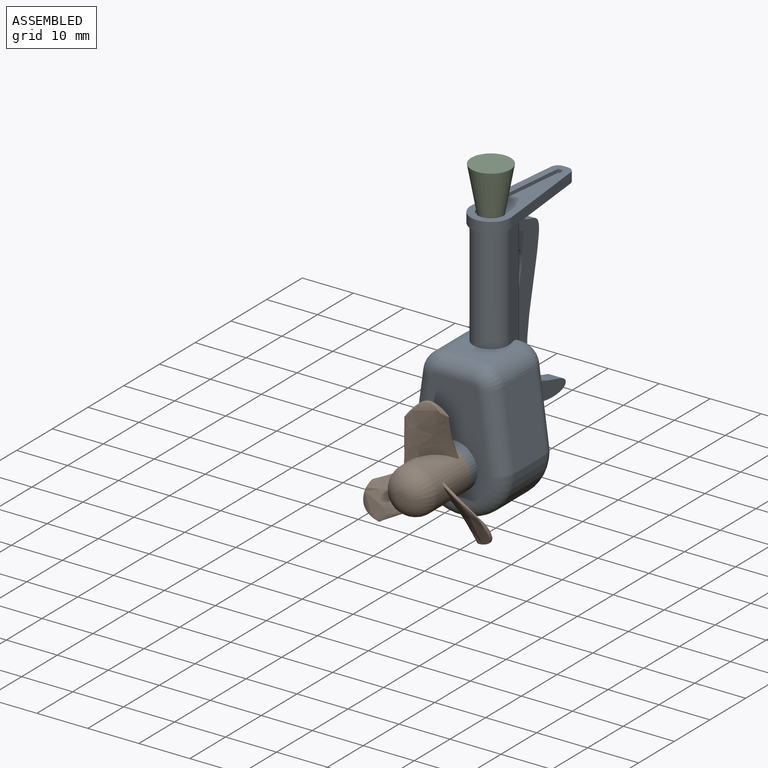
[diagram: assembled view]
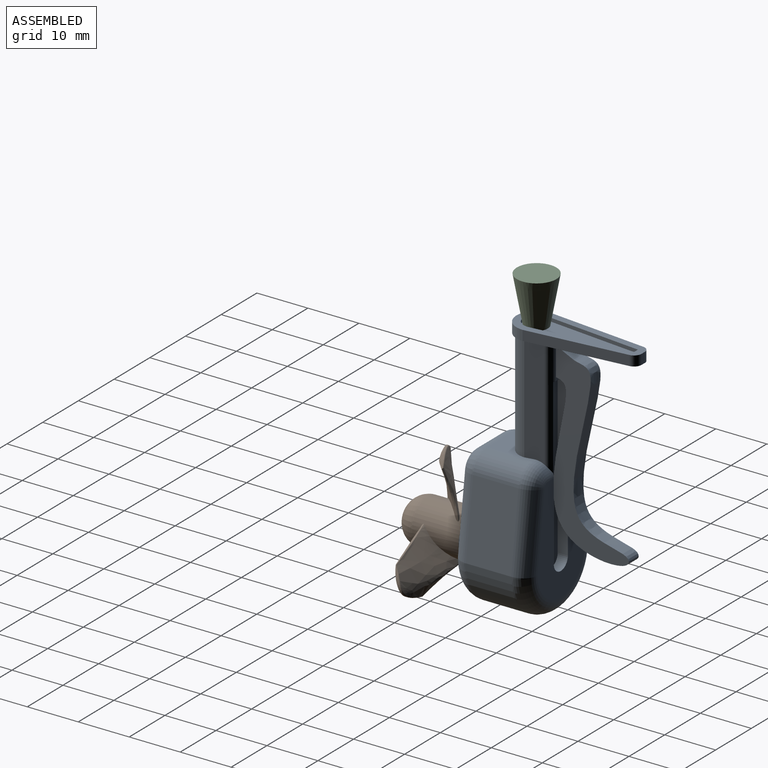
[diagram: assembled view, second angle]
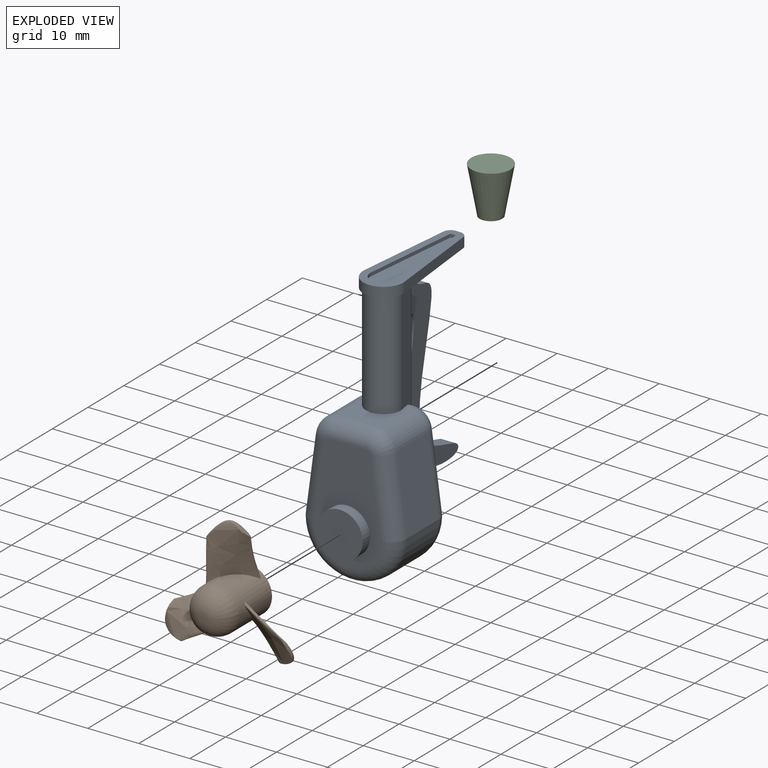
[diagram: exploded view]
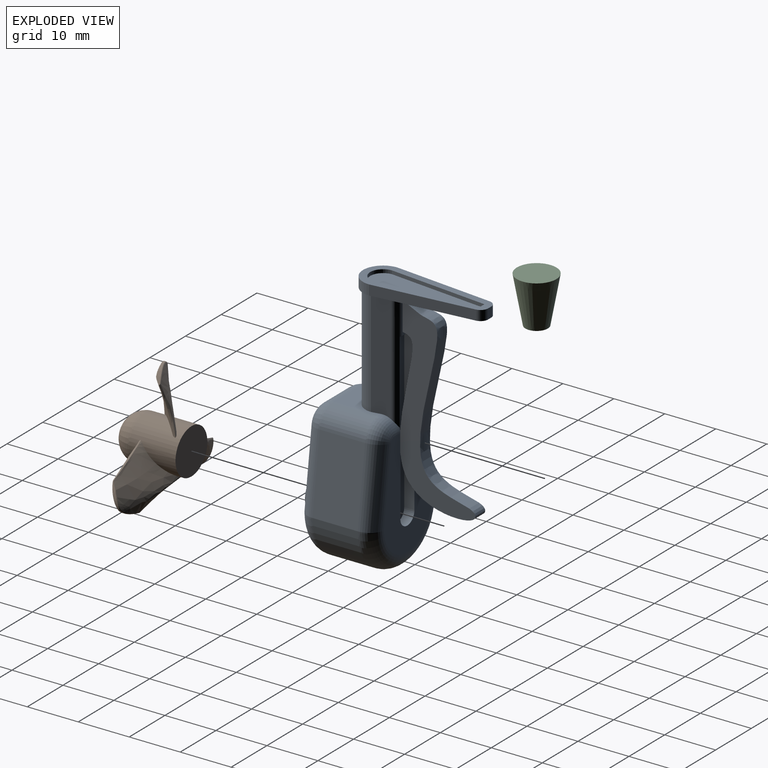
[diagram: exploded view, second angle]
ASSEMBLY  parts=3 mates=2
PART A: 52 faces, bbox 20.8x33.1x51.6 mm
  f0: cylinder r=1.5mm len=22.96mm, axis (0,0,-1), area 36.5mm2, adj f4,f12,f13,f27,f29,f34,f35,f37
  f1: plane 21.96x13.2mm, normal (0,1,0), area 171.6mm2, adj f3,f4,f22,f23,f24,f25,f26,f28
  f2: cylinder r=1.5mm len=22.96mm, axis (0,0,-1), area 36.9mm2, adj f3,f12,f15,f27,f28,f37
  f3: cylinder r=3mm len=3mm, axis (-1,0,0), area 4.9mm2, adj f1,f2,f8,f15,f22,f28
  f4: cylinder r=3mm len=3mm, axis (-1,0,0), area 4.9mm2, adj f0,f1,f8,f13,f26,f29
  f5: cylinder r=9.6mm len=19.2mm, axis (0,1,0), area 268.4mm2, adj f6,f10,f20,f24
  f6: plane 14.9x8.9mm, normal (0.99,0,0.13), area 133.8mm2, adj f5,f7,f21,f23
  f7: cylinder r=4mm len=8.9mm, axis (0,1,0), area 51.1mm2, adj f6,f8,f19,f22
  f8: plane 8.9x7.22mm, normal (0,0,1), area 34mm2, adj f3,f4,f7,f9,f13,f14,f15,f17
  f9: cylinder r=4mm len=8.9mm, axis (0,1,0), area 51.1mm2, adj f8,f10,f16,f26
  f10: plane 14.9x8.9mm, normal (-0.99,0,0.13), area 133.8mm2, adj f5,f9,f18,f25
  f11: plane 21.96x13.2mm, normal (0,-1,0), area 175.2mm2, adj f16,f17,f18,f19,f20,f21,f32
  f12: plane 6.84x2.73mm, normal (0,1,0), area 3.3mm2, adj f0,f2,f27,f34,f36,f37
  f13: plane 21.41x3.52mm, normal (-0.99,0.17,0), area 74.5mm2, adj f0,f4,f8,f14,f37
  f14: cylinder r=3.45mm len=20.83mm, axis (0,0,-1), area 225.8mm2, adj f8,f13,f15,f37
  f15: plane 21.41x3.52mm, normal (0.99,0.17,0), area 74.5mm2, adj f2,f3,f8,f14,f37
  f16: torus R=1mm, axis (0,-1,0), area 19.7mm2, adj f9,f11,f17,f18
  f17: cylinder r=3mm len=7.22mm, axis (1,0,0), area 34mm2, adj f8,f11,f16,f19
  f18: cylinder r=3mm len=15.3mm, axis (0.13,0,0.99), area 70.3mm2, adj f10,f11,f16,f20
  f19: torus R=1mm, axis (0,-1,0), area 19.7mm2, adj f7,f11,f17,f21
  f20: torus R=6.6mm, axis (0,-1,0), area 124.9mm2, adj f5,f11,f18,f21
  f21: cylinder r=3mm len=15.3mm, axis (0.13,0,-0.99), area 70.3mm2, adj f6,f11,f19,f20
  f22: torus R=1mm, axis (0,-1,0), area 19.7mm2, adj f1,f3,f7,f23
  f23: cylinder r=3mm len=15.3mm, axis (-0.13,0,0.99), area 70.3mm2, adj f1,f6,f22,f24
  f24: torus R=6.6mm, axis (0,-1,0), area 124.9mm2, adj f1,f5,f23,f25
  f25: cylinder r=3mm len=15.3mm, axis (-0.13,0,-0.99), area 70.3mm2, adj f1,f10,f24,f26
  f26: torus R=1mm, axis (0,-1,0), area 19.7mm2, adj f1,f4,f9,f25
  f27: plane 3.95x2mm, normal (0,0,-1), area 7.8mm2, adj f0,f2,f12,f28,f29,f31
  f28: plane 32.2x2mm, normal (-1,0,0), area 62.3mm2, adj f1,f2,f3,f27,f30,f31
  f29: plane 32.2x2mm, normal (1,0,0), area 62.3mm2, adj f0,f1,f4,f27,f30,f31
  f30: cylinder r=1.98mm len=3.95mm, axis (0,1,0), area 12.4mm2, adj f1,f28,f29,f31
  f31: plane 34.18x3.95mm, normal (0,1,0), area 133.3mm2, adj f27,f28,f29,f30
  f32: cylinder r=4.46mm len=8.93mm, axis (0,1,0), area 57.5mm2, adj f11,f33
  f33: plane 8.93x8.93mm, normal (0,-1,0), area 62.6mm2, adj f32
  f34: extruded ~35.88x14.69mm, area 241.2mm2, adj f0,f12,f35,f36
  f35: plane 36.68x16.31mm, normal (-1,0,0), area 173.9mm2, adj f0,f34
  f36: plane 36.68x16.31mm, normal (1,0,0), area 173.9mm2, adj f12,f34
  f37: plane 24.85x7.9mm, normal (0,0,-1), area 96.6mm2, adj f0,f2,f12,f13,f14,f15,f38,f39
  f38: cylinder r=3.95mm len=7.9mm, axis (0,0,-1), area 24.3mm2, adj f37,f39,f43,f44
  f39: plane 19.56x2.03mm, normal (0.99,0.1,0), area 38.5mm2, adj f37,f38,f40,f44
  f40: cylinder r=1.5mm len=1.96mm, axis (0,0,-1), area 4.3mm2, adj f37,f39,f41,f44
  f41: plane 1.96x0.86mm, normal (0,1,0), area 1.7mm2, adj f37,f40,f42,f44
  f42: cylinder r=1.5mm len=1.96mm, axis (0,0,-1), area 4.3mm2, adj f37,f41,f43,f44
  f43: plane 19.56x2.03mm, normal (-0.99,0.1,0), area 38.5mm2, adj f37,f38,f42,f44
  f44: plane 24.85x7.9mm, normal (0,0,1), area 73.6mm2, adj f38,f39,f40,f41,f42,f43,f45,f46
  f45: cylinder r=0.1mm len=0.68mm, axis (0,0,1), area 0.1mm2, adj f44,f46,f50,f51
  f46: plane 19.48x2.02mm, normal (0.99,-0.1,0), area 13.3mm2, adj f44,f45,f47,f51
  f47: cylinder r=2.55mm len=5.1mm, axis (0,0,1), area 5.4mm2, adj f44,f46,f48,f51
  f48: plane 19.48x2.02mm, normal (-0.99,-0.1,0), area 13.3mm2, adj f44,f47,f49,f51
  f49: cylinder r=0.1mm len=0.68mm, axis (0,0,1), area 0.1mm2, adj f44,f48,f50,f51
  f50: plane 0.86x0.68mm, normal (0,-1,0), area 0.6mm2, adj f44,f45,f49,f51
  f51: plane 22.05x5.1mm, normal (0,0,1), area 69.9mm2, adj f45,f46,f47,f48,f49,f50
PART B: 31 faces, bbox 28.4x13.1x24.6 mm
  f0: bspline ~14.35x6.44mm, area 39.4mm2, adj f1,f3,f7,f9
  f1: bspline ~14.35x4.79mm, area 26.6mm2, adj f0,f2,f6,f7,f8,f9
  f2: bspline ~14.35x6.98mm, area 41.3mm2, adj f1,f3,f8,f9
  f3: bspline ~14.35x4.48mm, area 27.1mm2, adj f0,f2,f5,f7,f8,f9
  f4: plane 0.28x0.05mm, normal (0,0,1), area 0mm2, adj f5,f6,f7,f8
  f5: extruded ~3.27x2.9mm, area 1.4mm2, adj f3,f4,f7,f8
  f6: extruded ~3.13x2.51mm, area 1.9mm2, adj f1,f4,f7,f8
  f7: bspline ~6.13x3.26mm, area 2.7mm2, adj f0,f1,f3,f4,f5,f6
  f8: bspline ~6.67x3.35mm, area 1.9mm2, adj f1,f2,f3,f4,f5,f6
  f9: cylinder r=4.46mm len=9.08mm, axis (0,1,0), area 235.2mm2, adj f0,f1,f2,f3,f11,f12,f18,f19
  f10: plane 0.93x0.93mm, normal (0,-1,0), area 0.7mm2, adj f12
  f11: plane 8.93x8.93mm, normal (0,1,0), area 62.6mm2, adj f9
  f12: torus R=0.47mm, axis (0,-1,0), area 118.9mm2, adj f9,f10
  f13: plane 0.28x0.04mm, normal (-0.87,0,-0.5), area 0mm2, adj f14,f15,f16,f17
  f14: extruded ~3.97x1.5mm, area 1.9mm2, adj f13,f15,f17,f20
  f15: bspline ~5.55x4.67mm, area 1.9mm2, adj f13,f14,f16,f18,f19,f20
  f16: extruded ~4.15x1.87mm, area 1.4mm2, adj f13,f15,f17,f18
  f17: bspline ~4.7x4.69mm, area 2.7mm2, adj f13,f14,f16,f18,f20,f21
  f18: bspline ~12.76x9.68mm, area 27.1mm2, adj f9,f15,f16,f17,f19,f21
  f19: bspline ~9.61x9.35mm, area 41.3mm2, adj f9,f15,f18,f20
  f20: bspline ~14.17x7.74mm, area 26.6mm2, adj f9,f14,f15,f17,f19,f21
  f21: bspline ~11.09x7.59mm, area 39.4mm2, adj f9,f17,f18,f20
  f22: bspline ~9.93x9.6mm, area 39.4mm2, adj f9,f23,f25,f29
  f23: bspline ~12.75x10.2mm, area 26.6mm2, adj f9,f22,f24,f28,f29,f30
  f24: bspline ~10.64x7.57mm, area 41.3mm2, adj f9,f23,f25,f30
  f25: bspline ~13.88x7.75mm, area 27.1mm2, adj f9,f22,f24,f27,f29,f30
  f26: plane 0.28x0.04mm, normal (0.87,0,-0.5), area 0mm2, adj f27,f28,f29,f30
  f27: extruded ~4.28x1.87mm, area 1.4mm2, adj f25,f26,f29,f30
  f28: extruded ~3.74x1.5mm, area 1.9mm2, adj f23,f26,f29,f30
  f29: bspline ~5.93x3.32mm, area 2.7mm2, adj f22,f23,f25,f26,f27,f28
  f30: bspline ~6x4.17mm, area 1.9mm2, adj f23,f24,f25,f26,f27,f28
PART C: 3 faces, bbox 7.8x7.8x9.2 mm
  f0: plane 7.75x7.75mm, normal (0,0,1), area 47.2mm2, adj f2
  f1: plane 4.42x4.42mm, normal (0,0,-1), area 15.3mm2, adj f2
  f2: cone r=3.88mm half-angle=10.3deg, axis (0,0,1), area 178.7mm2, adj f0,f1
PLACE A t=(-35.76,11.6,-0.89)mm
PLACE B t=(-35.76,-5.35,-0.89)mm
PLACE C t=(-35.76,11.6,-0.89)mm
MATE revolute A.f32 <-> B.f9  axis (0,-1,0) through (-35.76,-5.35,-0.89)mm
MATE revolute A.f47 <-> C.f2  axis (0,0,1) through (-35.76,6.85,39.57)mm
